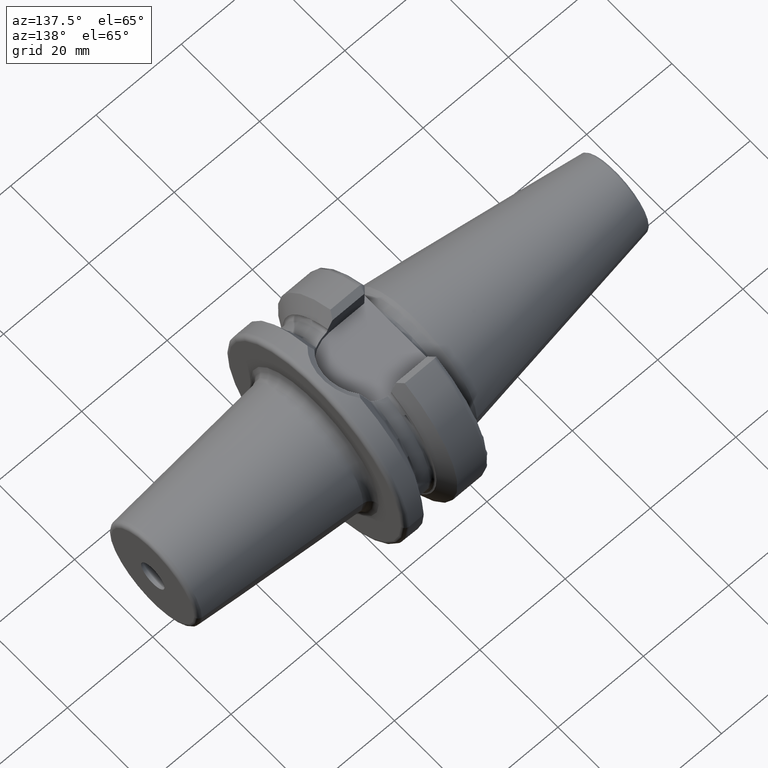
[diagram: clean part render]
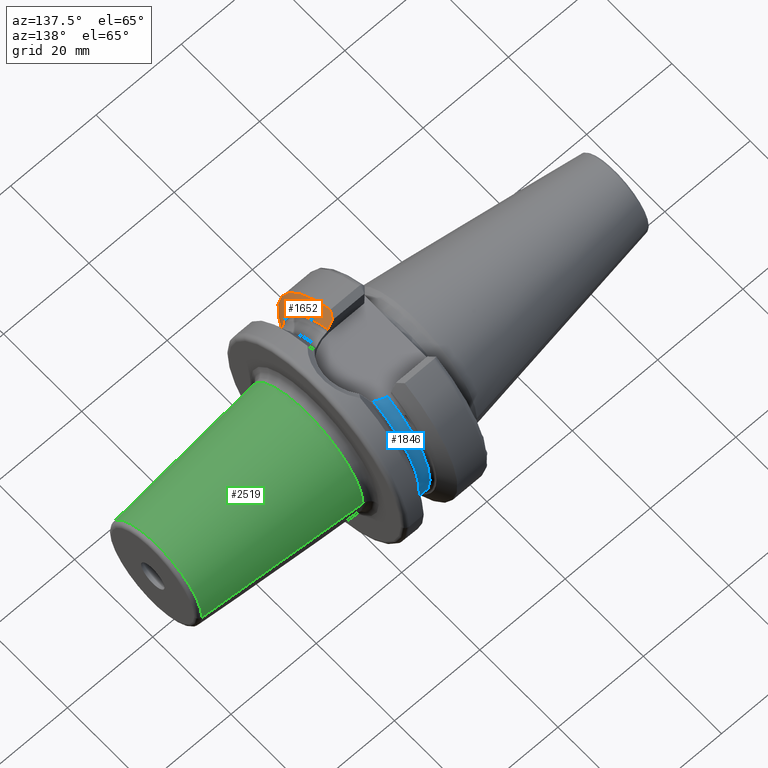
[diagram: same view with three faces highlighted in distinct colors, each labeled with its STEP entity id]
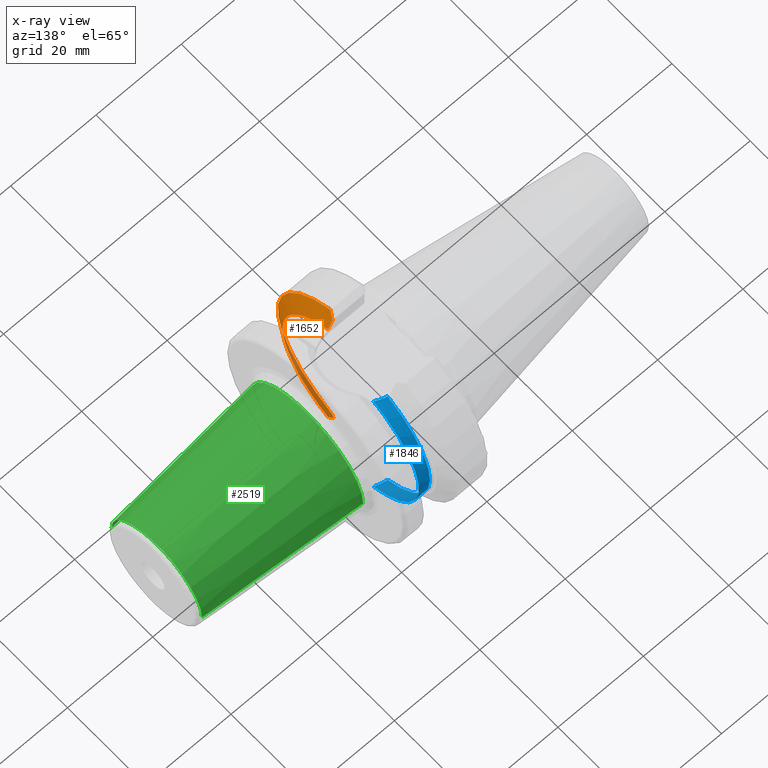
[diagram: x-ray of the same camera — body ghosted, the three highlighted faces saturated]
A machine part, auxiliary view with three faces highlighted in distinct colors.
The next image is the same camera in x-ray (body ghosted, the three faces saturated) — at least one of them is partly hidden behind the body in this view.
Their STEP definitions:

[orange] entity #1652 — the highlighted conical surface has half-angle 60 deg.
#185=CARTESIAN_POINT('',(1.15625E1,0.E0,0.E0));
#186=DIRECTION('',(1.E0,0.E0,0.E0));
#187=DIRECTION('',(0.E0,-4.108295537893E-1,9.117121682490E-1));
#188=AXIS2_PLACEMENT_3D('',#185,#186,#187);
#190=CARTESIAN_POINT('',(9.650924158743E0,0.E0,0.E0));
#191=DIRECTION('',(1.E0,0.E0,0.E0));
#192=DIRECTION('',(0.E0,-4.135970895862E-1,9.104600197075E-1));
#193=AXIS2_PLACEMENT_3D('',#190,#191,#192);
#262=CARTESIAN_POINT('',(9.650924158743E0,-9.014912704843E0,-2.114879308434E1));
#263=CARTESIAN_POINT('',(9.741215736396E0,-8.858523104853E0,-2.104545109677E1));
#264=CARTESIAN_POINT('',(9.919221126355E0,-8.548814943786E0,-2.084079645905E1));
#265=CARTESIAN_POINT('',(1.009206903030E1,-8.245248073975E0,-2.064019997638E1));
#266=CARTESIAN_POINT('',(1.017720370416E1,-8.095E0,-2.054091629899E1));
#272=CARTESIAN_POINT('',(1.1155E1,-8.095E0,-1.870865212813E1));
#273=CARTESIAN_POINT('',(1.099795578230E1,-8.095E0,-1.900503145087E1));
#274=CARTESIAN_POINT('',(1.067792752134E1,-8.095E0,-1.960677863313E1));
#275=CARTESIAN_POINT('',(1.034607361255E1,-8.095E0,-2.022653130930E1));
#276=CARTESIAN_POINT('',(1.017720370416E1,-8.095E0,-2.054091629899E1));
#365=CARTESIAN_POINT('',(1.15625E1,-8.084736776791E0,-1.794163255419E1));
#366=CARTESIAN_POINT('',(1.149487170181E1,-8.088145487832E0,-1.806857530355E1));
#367=CARTESIAN_POINT('',(1.135932539469E1,-8.093276332983E0,-1.832336899895E1));
#368=CARTESIAN_POINT('',(1.122320355344E1,-8.095E0,-1.857993600428E1));
#369=CARTESIAN_POINT('',(1.1155E1,-8.095E0,-1.870865212813E1));
#476=CARTESIAN_POINT('',(1.1155E1,-8.095E0,1.870865212813E1));
#477=CARTESIAN_POINT('',(1.122320355344E1,-8.095E0,1.857993600428E1));
#478=CARTESIAN_POINT('',(1.135932539469E1,-8.093276332983E0,1.832336899895E1));
#479=CARTESIAN_POINT('',(1.149487170181E1,-8.088145487832E0,1.806857530355E1));
#480=CARTESIAN_POINT('',(1.15625E1,-8.084736776791E0,1.794163255419E1));
#558=CARTESIAN_POINT('',(1.045597922678E1,-8.095E0,2.002101583337E1));
#559=CARTESIAN_POINT('',(1.057548285870E1,-8.095E0,1.979775066590E1));
#560=CARTESIAN_POINT('',(1.081149734599E1,-8.095E0,1.935576218154E1));
#561=CARTESIAN_POINT('',(1.104150413363E1,-8.095E0,1.892284548399E1));
#562=CARTESIAN_POINT('',(1.1155E1,-8.095E0,1.870865212813E1));
#572=CARTESIAN_POINT('',(1.045597922678E1,-8.095E0,2.002101583337E1));
#573=CARTESIAN_POINT('',(1.032788938418E1,-8.323259168190E0,2.016803144927E1));
#574=CARTESIAN_POINT('',(1.006562496736E1,-8.787118359367E0,2.046679072902E1));
#575=CARTESIAN_POINT('',(9.791185641443E0,-9.265657075205E0,2.077500469739E1));
#576=CARTESIAN_POINT('',(9.650924158743E0,-9.508597089586E0,2.093147585308E1));
#1190=CARTESIAN_POINT('',(1.15625E1,-8.084736776791E0,1.794163255419E1));
#1191=CARTESIAN_POINT('',(1.15625E1,-8.084736776791E0,-1.794163255419E1));
#1192=VERTEX_POINT('',#1190);
#1193=VERTEX_POINT('',#1191);
#1294=VERTEX_POINT('',#558);
#1295=VERTEX_POINT('',#562);
#1300=VERTEX_POINT('',#272);
#1301=VERTEX_POINT('',#276);
#1304=CARTESIAN_POINT('',(9.650924158743E0,-9.508597089586E0,2.093147585308E1));
#1305=CARTESIAN_POINT('',(9.650924158743E0,-9.014912704843E0,
-2.114879308434E1));
#1306=VERTEX_POINT('',#1304);
#1307=VERTEX_POINT('',#1305);
#1629=CARTESIAN_POINT('',(1.060671207937E1,0.E0,0.E0));
#1630=DIRECTION('',(-1.E0,0.E0,0.E0));
#1631=DIRECTION('',(0.E0,1.E0,0.E0));
#1632=AXIS2_PLACEMENT_3D('',#1629,#1630,#1631);
#1633=CONICAL_SURFACE('',#1632,2.133452676021E1,6.E1);
#1635=ORIENTED_EDGE('',*,*,#1634,.T.);
#1637=ORIENTED_EDGE('',*,*,#1636,.T.);
#1639=ORIENTED_EDGE('',*,*,#1638,.T.);
#1641=ORIENTED_EDGE('',*,*,#1640,.F.);
#1643=ORIENTED_EDGE('',*,*,#1642,.F.);
#1645=ORIENTED_EDGE('',*,*,#1644,.F.);
#1647=ORIENTED_EDGE('',*,*,#1646,.T.);
#1649=ORIENTED_EDGE('',*,*,#1648,.T.);
#1650=EDGE_LOOP('',(#1635,#1637,#1639,#1641,#1643,#1645,#1647,#1649));
#1651=FACE_OUTER_BOUND('',#1650,.F.);
#1652=ADVANCED_FACE('',(#1651),#1633,.T.);
#189=CIRCLE('',#188,1.967905352042E1);
#194=CIRCLE('',#193,2.299E1);
#267=B_SPLINE_CURVE_WITH_KNOTS('',3,(#262,#263,#264,#265,#266),.UNSPECIFIED.,
.F.,.F.,(4,1,4),(0.E0,5.E-1,1.E0),.UNSPECIFIED.);
#277=B_SPLINE_CURVE_WITH_KNOTS('',3,(#272,#273,#274,#275,#276),.UNSPECIFIED.,
.F.,.F.,(4,1,4),(0.E0,5.E-1,1.E0),.UNSPECIFIED.);
#370=B_SPLINE_CURVE_WITH_KNOTS('',3,(#365,#366,#367,#368,#369),.UNSPECIFIED.,
.F.,.F.,(4,1,4),(0.E0,5.E-1,1.E0),.UNSPECIFIED.);
#481=B_SPLINE_CURVE_WITH_KNOTS('',3,(#476,#477,#478,#479,#480),.UNSPECIFIED.,
.F.,.F.,(4,1,4),(0.E0,5.E-1,1.E0),.UNSPECIFIED.);
#563=B_SPLINE_CURVE_WITH_KNOTS('',3,(#558,#559,#560,#561,#562),.UNSPECIFIED.,
.F.,.F.,(4,1,4),(0.E0,5.E-1,1.E0),.UNSPECIFIED.);
#577=B_SPLINE_CURVE_WITH_KNOTS('',3,(#572,#573,#574,#575,#576),.UNSPECIFIED.,
.F.,.F.,(4,1,4),(0.E0,5.E-1,1.E0),.UNSPECIFIED.);
#1634=EDGE_CURVE('',#1192,#1193,#189,.T.);
#1636=EDGE_CURVE('',#1193,#1300,#370,.T.);
#1638=EDGE_CURVE('',#1300,#1301,#277,.T.);
#1640=EDGE_CURVE('',#1307,#1301,#267,.T.);
#1642=EDGE_CURVE('',#1306,#1307,#194,.T.);
#1644=EDGE_CURVE('',#1294,#1306,#577,.T.);
#1646=EDGE_CURVE('',#1294,#1295,#563,.T.);
#1648=EDGE_CURVE('',#1295,#1192,#481,.T.);

[blue] entity #1846 — the highlighted cylindrical surface (partial cylindrical patch) has radius 18.875 mm, axis along (1, 0, 0).
#394=CARTESIAN_POINT('',(1.48875E1,0.E0,0.E0));
#395=DIRECTION('',(-1.E0,0.E0,0.E0));
#396=DIRECTION('',(0.E0,3.805635924078E-1,9.247547524256E-1));
#397=AXIS2_PLACEMENT_3D('',#394,#395,#396);
#414=CARTESIAN_POINT('',(1.23125E1,0.E0,0.E0));
#415=DIRECTION('',(-1.E0,0.E0,0.E0));
#416=DIRECTION('',(0.E0,4.244671493312E-1,9.054433384473E-1));
#417=AXIS2_PLACEMENT_3D('',#414,#415,#416);
#419=CARTESIAN_POINT('',(1.23125E1,8.011817443627E0,-1.709024301319E1));
#420=CARTESIAN_POINT('',(1.260448853217E1,7.969632667405E0,-1.711001901788E1));
#421=CARTESIAN_POINT('',(1.318480954598E1,7.853460451226E0,-1.716416337693E1));
#422=CARTESIAN_POINT('',(1.404920492439E1,7.578313334037E0,-1.728803651447E1));
#423=CARTESIAN_POINT('',(1.461036501125E1,7.327142609799E0,-1.739548376922E1));
#424=CARTESIAN_POINT('',(1.48875E1,7.183137806697E0,-1.745474595203E1));
#426=CARTESIAN_POINT('',(1.48875E1,7.183137806697E0,1.745474595203E1));
#427=CARTESIAN_POINT('',(1.461036501125E1,7.327142609799E0,1.739548376922E1));
#428=CARTESIAN_POINT('',(1.404920492439E1,7.578313334037E0,1.728803651447E1));
#429=CARTESIAN_POINT('',(1.318480954598E1,7.853460451226E0,1.716416337693E1));
#430=CARTESIAN_POINT('',(1.260448853217E1,7.969632667405E0,1.711001901788E1));
#431=CARTESIAN_POINT('',(1.23125E1,8.011817443627E0,1.709024301319E1));
#1158=CARTESIAN_POINT('',(1.23125E1,8.011817443627E0,1.709024301319E1));
#1159=CARTESIAN_POINT('',(1.23125E1,8.011817443627E0,-1.709024301319E1));
#1160=VERTEX_POINT('',#1158);
#1161=VERTEX_POINT('',#1159);
#1170=CARTESIAN_POINT('',(1.48875E1,7.183137806697E0,1.745474595203E1));
#1171=CARTESIAN_POINT('',(1.48875E1,7.183137806697E0,-1.745474595203E1));
#1172=VERTEX_POINT('',#1170);
#1173=VERTEX_POINT('',#1171);
#1833=CARTESIAN_POINT('',(9.2E0,0.E0,0.E0));
#1834=DIRECTION('',(1.E0,0.E0,0.E0));
#1835=DIRECTION('',(0.E0,-1.E0,0.E0));
#1836=AXIS2_PLACEMENT_3D('',#1833,#1834,#1835);
#1837=CYLINDRICAL_SURFACE('',#1836,1.8875E1);
#1839=ORIENTED_EDGE('',*,*,#1838,.T.);
#1840=ORIENTED_EDGE('',*,*,#1752,.T.);
#1841=ORIENTED_EDGE('',*,*,#1810,.F.);
#1843=ORIENTED_EDGE('',*,*,#1842,.T.);
#1844=EDGE_LOOP('',(#1839,#1840,#1841,#1843));
#1845=FACE_OUTER_BOUND('',#1844,.F.);
#1846=ADVANCED_FACE('',(#1845),#1837,.T.);
#398=CIRCLE('',#397,1.8875E1);
#418=CIRCLE('',#417,1.8875E1);
#425=B_SPLINE_CURVE_WITH_KNOTS('',3,(#419,#420,#421,#422,#423,#424),
.UNSPECIFIED.,.F.,.F.,(4,1,1,4),(0.E0,3.333333333333E-1,6.666666666667E-1,1.E0),
.UNSPECIFIED.);
#432=B_SPLINE_CURVE_WITH_KNOTS('',3,(#426,#427,#428,#429,#430,#431),
.UNSPECIFIED.,.F.,.F.,(4,1,1,4),(0.E0,3.333333333333E-1,6.666666666667E-1,1.E0),
.UNSPECIFIED.);
#1752=EDGE_CURVE('',#1161,#1173,#425,.T.);
#1810=EDGE_CURVE('',#1172,#1173,#398,.T.);
#1838=EDGE_CURVE('',#1160,#1161,#418,.T.);
#1842=EDGE_CURVE('',#1172,#1160,#432,.T.);

[green] entity #2519 — the highlighted conical surface has half-angle 4.5 deg.
#842=CARTESIAN_POINT('',(5.907845909573E1,0.E0,0.E0));
#843=DIRECTION('',(-1.E0,0.E0,0.E0));
#844=DIRECTION('',(0.E0,-1.E0,0.E0));
#845=AXIS2_PLACEMENT_3D('',#842,#843,#844);
#847=CARTESIAN_POINT('',(2.384308180854E1,0.E0,0.E0));
#848=DIRECTION('',(1.E0,0.E0,0.E0));
#849=DIRECTION('',(0.E0,1.E0,0.E0));
#850=AXIS2_PLACEMENT_3D('',#847,#848,#849);
#867=DIRECTION('',(-9.969173337331E-1,7.845909572785E-2,1.792595924381E-13));
#868=VECTOR('',#867,3.534433206737E1);
#869=CARTESIAN_POINT('',(5.907845909573E1,1.157252684207E1,
-7.183203901068E-13));
#870=LINE('',#869,#868);
#876=DIRECTION('',(-9.969173337331E-1,-7.845909572785E-2,-1.791863042911E-13));
#877=VECTOR('',#876,3.534433206737E1);
#878=CARTESIAN_POINT('',(5.907845909573E1,-1.157252684207E1,
7.153778046352E-13));
#879=LINE('',#878,#877);
#1365=CARTESIAN_POINT('',(5.907845909573E1,1.157252684207E1,0.E0));
#1366=CARTESIAN_POINT('',(5.907845909573E1,-1.157252684207E1,0.E0));
#1367=VERTEX_POINT('',#1365);
#1368=VERTEX_POINT('',#1366);
#1377=CARTESIAN_POINT('',(2.384308180854E1,-1.434561117519E1,0.E0));
#1378=CARTESIAN_POINT('',(2.384308180854E1,1.434561117519E1,0.E0));
#1379=VERTEX_POINT('',#1377);
#1380=VERTEX_POINT('',#1378);
#2505=CARTESIAN_POINT('',(4.146077045214E1,0.E0,0.E0));
#2506=DIRECTION('',(-1.E0,0.E0,0.E0));
#2507=DIRECTION('',(0.E0,1.E0,0.E0));
#2508=AXIS2_PLACEMENT_3D('',#2505,#2506,#2507);
#2509=CONICAL_SURFACE('',#2508,1.295906900863E1,4.5E0);
#2511=ORIENTED_EDGE('',*,*,#2510,.F.);
#2513=ORIENTED_EDGE('',*,*,#2512,.T.);
#2514=ORIENTED_EDGE('',*,*,#2499,.F.);
#2516=ORIENTED_EDGE('',*,*,#2515,.F.);
#2517=EDGE_LOOP('',(#2511,#2513,#2514,#2516));
#2518=FACE_OUTER_BOUND('',#2517,.F.);
#2519=ADVANCED_FACE('',(#2518),#2509,.T.);
#846=CIRCLE('',#845,1.157252684207E1);
#851=CIRCLE('',#850,1.434561117519E1);
#2499=EDGE_CURVE('',#1380,#1379,#851,.T.);
#2510=EDGE_CURVE('',#1368,#1367,#846,.T.);
#2512=EDGE_CURVE('',#1368,#1379,#879,.T.);
#2515=EDGE_CURVE('',#1367,#1380,#870,.T.);